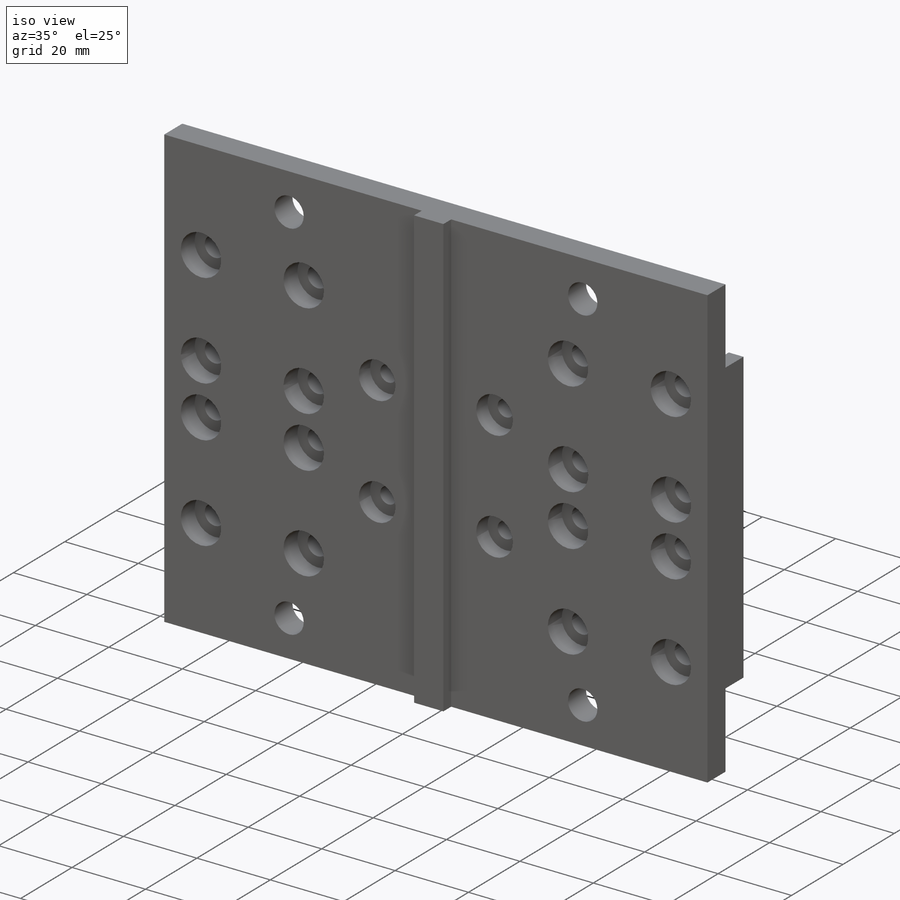
[diagram: iso view]
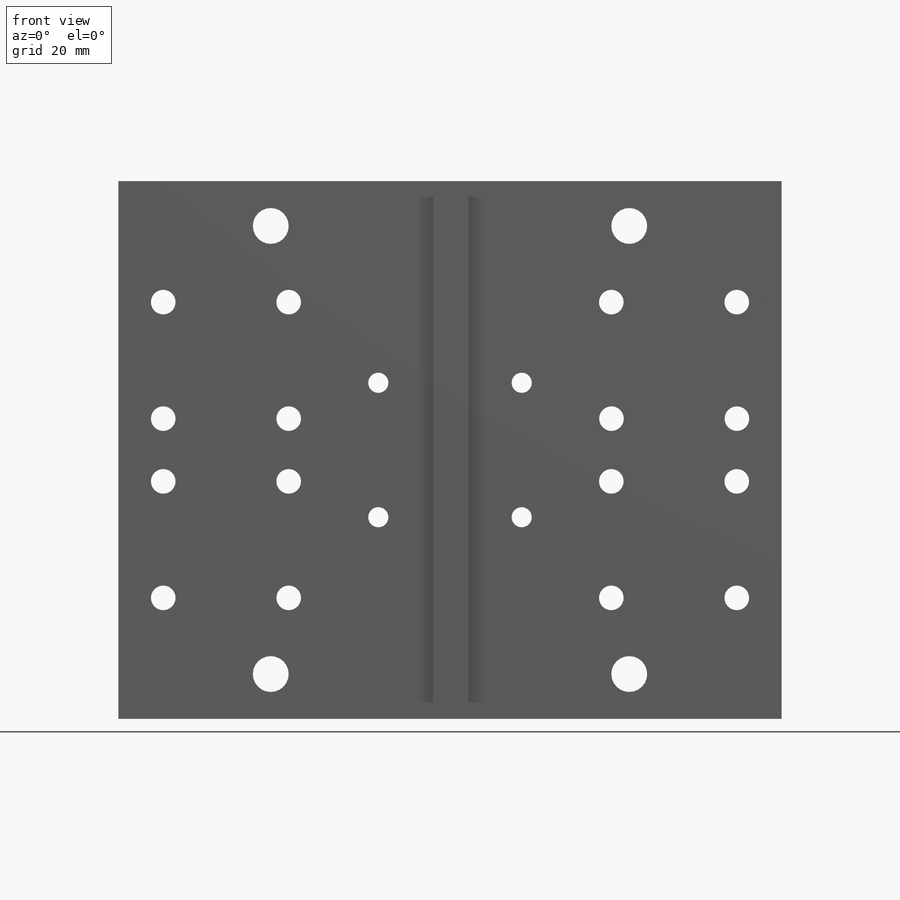
[diagram: front view]
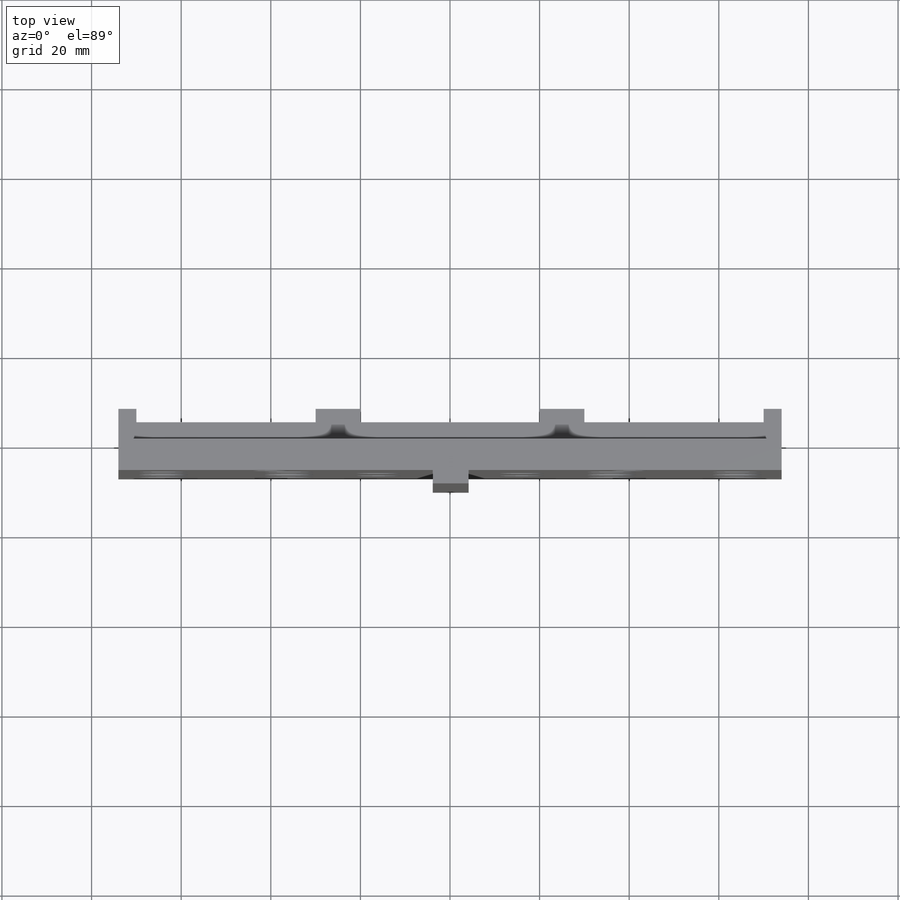
[diagram: top view]
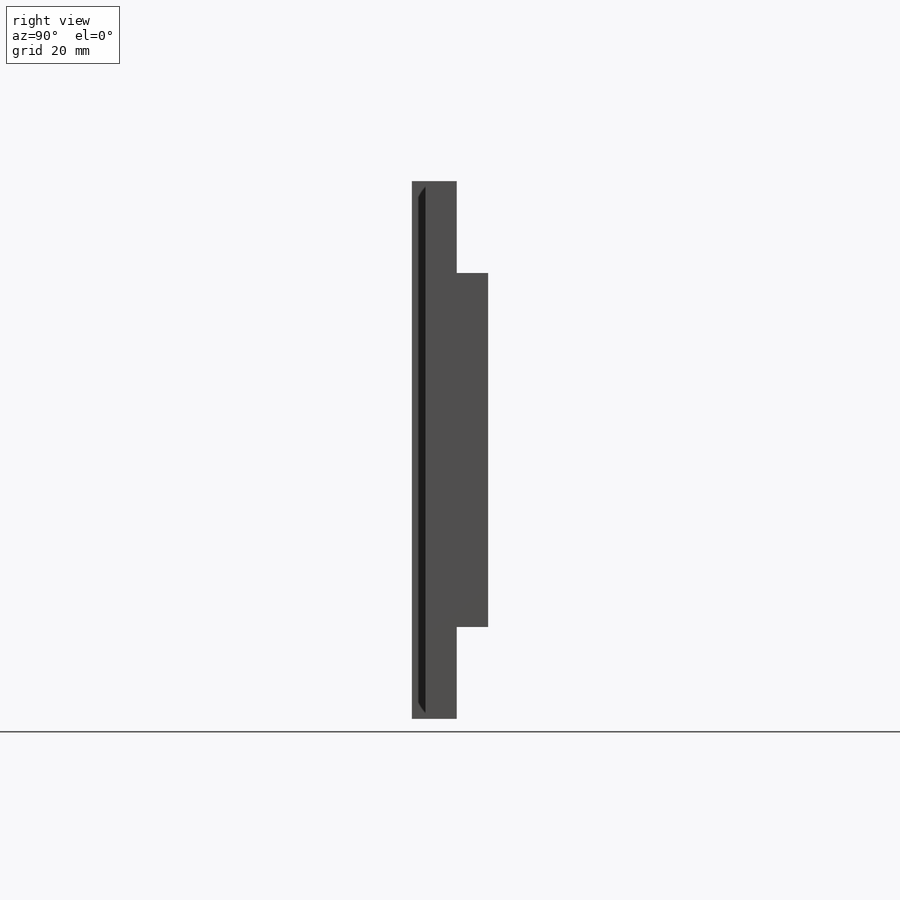
[diagram: right view]
SOLIDWORKS PART (.sldprt)
format: sldprt  version: not decoded by parser v0  size: 737,280 bytes
history: native  units: mm
features: sketch x14, extrude x5, cut_extrude x5, plane x3, hole x2, material x1 (+10 scaffold rows collapsed)
feature tree (40):
  scaffold x10  (default folders/planes/origin — collapsed)
  material  "Matériau <non spécifié>"
  plane  "Plan de face"
  plane  "Plan de dessus"
  plane  "Plan de droite"
  sketch  "Esquisse1"  dims[c1.D9=5.0mm c1.D10=5.0mm c1.D11=5.0mm c1.D12=5.0mm c1.D13=5.0mm c1.D14=5.0mm c1.D15=5.0mm c1.D16=5.0mm c1.D26=6.0mm c1.D27=6.0mm c1.D31=6.0mm c1.D32=6.0mm c2.D27=9.0mm c2.D30=9.0mm c2.D33=4.0mm c2.D34=4.0mm c2.D41=4.0mm c2.D42=4.0mm c2.D44=4.0mm c2.D46=4.0mm c2.D32=5.0mm c2.D47=5.0mm c2.D48=5.0mm c2.D49=5.0mm c2.D53=5.0mm c2.D54=5.0mm c2.D55=5.0mm c2.D56=5.0mm c2.D1=148.0mm c2.D2=120.0mm c2.D3=30.0mm c2.D4=30.0mm c2.D5=40.0mm c2.D6=40.0mm c2.D7=10.0mm c2.D8=10.0mm c2.D9=40.12mm c2.D17=26.0mm c2.D18=28.0mm c2.D19=6.0mm c2.D20=27.0mm c2.D21=28.0mm c2.D22=26.0mm c2.D23=6.0mm c2.D24=27.0mm c2.D25=20.0mm c2.D28=26.4mm c2.D29=6.8mm c3.D30=20.0mm c3.D33=26.4mm c3.D34=6.8mm c3.D35=27.0mm c3.D36=27.0mm c3.D37=27.0mm c3.D38=150.0mm c3.D39=26.0mm c4.D38=20.0mm c4.D40=120.0mm c4.D4=20.0mm c5.D40=74.0mm c5.D25=28.0mm c5.D26=32.0mm c5.D28=28.0mm c5.D29=32.0mm c5.D31=5.0mm c5.D32=5.0mm c5.D43=45.0mm c5.D44=45.0mm c5.D45=45.0mm c5.D46=45.0mm c5.D27=16.0mm c5.D30=16.0mm c6.D31=26.0mm c6.D50=26.0mm c6.D51=26.0mm c6.D52=27.0mm c6.D57=26.0mm c6.D58=26.0mm c6.D59=27.0mm c6.D60=27.0mm]
  extrude  "Extrusion1"  Depth=4mm
  sketch  "Esquisse2"  dims[c1.D3=8.0mm c1.D5=8.0mm c1.D6=8.0mm c1.D7=8.0mm c1.D1=10.0mm c1.D2=10.0mm c1.D4=20.0mm c2.D5=20.0mm c2.D6=20.0mm c2.20=20.0mm c2.D4=80.0mm c3.D5=80.0mm c3.D6=40.0mm c3.D7=40.0mm]
  cut_extrude  "Enlèv. mat.-Extru.1"  [1 undecoded]
  sketch  "Esquisse3"
  extrude  "Boss.-Extru.1"  Depth=3mm
  hole  "Chambrage pour vis à tête hexagonale M41"  Diameter=4.5mm Depth=7mm
  sketch  "Esquisse5"  dims[D1=16.0mm D2=16.0mm D3=16.0mm D4=16.0mm D5=45.0mm D6=45.0mm D7=45.0mm D8=45.0mm]
  sketch  "Esquisse4"  dims[hole-wizard template sketch: 42 standard entries collapsed; hole parameters kept: c12.Profondeur du perçage jusqu'au prochain=7.0mm c12.Diamètre du chambrage=10.0mm c12.Profondeur du chambrage=4.4mm]
  hole  "Chambrage pour vis à tête hexagonale M51"  Diameter=5.5mm Depth=7mm
  sketch  "Esquisse7"  dims[c1.D1=30.0mm c1.D2=30.0mm c1.D3=33.0mm c1.D4=33.0mm c1.D5=26.0mm c1.D6=26.0mm c1.D7=33.0mm c1.D8=26.0mm c1.D9=33.0mm c1.D10=26.0mm c1.D11=6.0mm c1.D12=6.0mm c1.D13=28.0mm c1.D14=28.0mm c1.D15=6.0mm c1.D16=6.0mm c1.D17=28.0mm c1.D18=28.0mm c1.D19=28.0mm c1.D20=28.0mm c1.D21=28.0mm c1.D22=28.0mm c1.D23=26.0mm c1.D24=26.0mm c1.D25=6.0mm c1.D26=~6.00049mm c1.D27=~14.961962mm c1.D28=~45.038038mm c2.D27=33.0mm c2.D28=33.0mm c2.D29=26.0mm c2.D30=26.0mm c2.D31=33.0mm c2.D32=6.0mm]
  sketch  "Esquisse6"  dims[hole-wizard template sketch: 42 standard entries collapsed; hole parameters kept: c12.Profondeur du perçage jusqu'au prochain=7.0mm c12.Diamètre du chambrage=11.0mm c12.Profondeur du chambrage=5.4mm]
  sketch  "Esquisse8"
  cut_extrude  "Enlèv. mat.-Extru.2"  [1 undecoded]
  sketch  "Esquisse9"  dims[D1=120.0mm D2=60.0mm]
  extrude  "Boss.-Extru.2"  Depth=4mm
  sketch  "Esquisse11"  dims[D1=4.0mm D2=8.0mm]
  extrude  "Boss.-Extru.4"  Depth=3mm
  sketch  "Esquisse12"
  cut_extrude  "Enlèv. mat.-Extru.3"  [1 undecoded]
  sketch  "Esquisse13"
  cut_extrude  "Enlèv. mat.-Extru.4"  [1 undecoded]
  sketch  "Esquisse14"  dims[D1=20.5mm D2=20.5mm]
  cut_extrude  "Enlèv. mat.-Extru.5"  Depth=4mm
  sketch  "Esquisse15"  dims[D1=4.0mm D2=4.0mm D3=10.0mm D4=10.0mm D5=40.0mm D6=40.0mm D7=40.0mm]
  extrude  "Boss.-Extru.5"  Depth=3mm
decode coverage: 18 of 26 modeling features carry decoded parameters
note: ~ marks probable driven/reference dimensions
note: 4 parameter values undecoded
summary: no parameter record found for 4 features
note: suppression state not decoded; provenance and decode notes live in map.json
